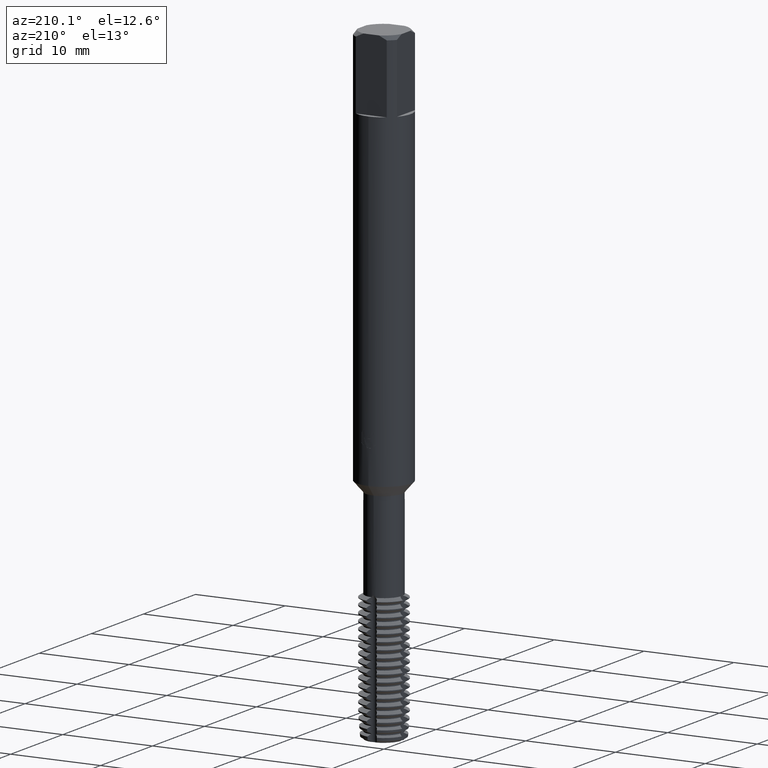
[diagram: clean part render]
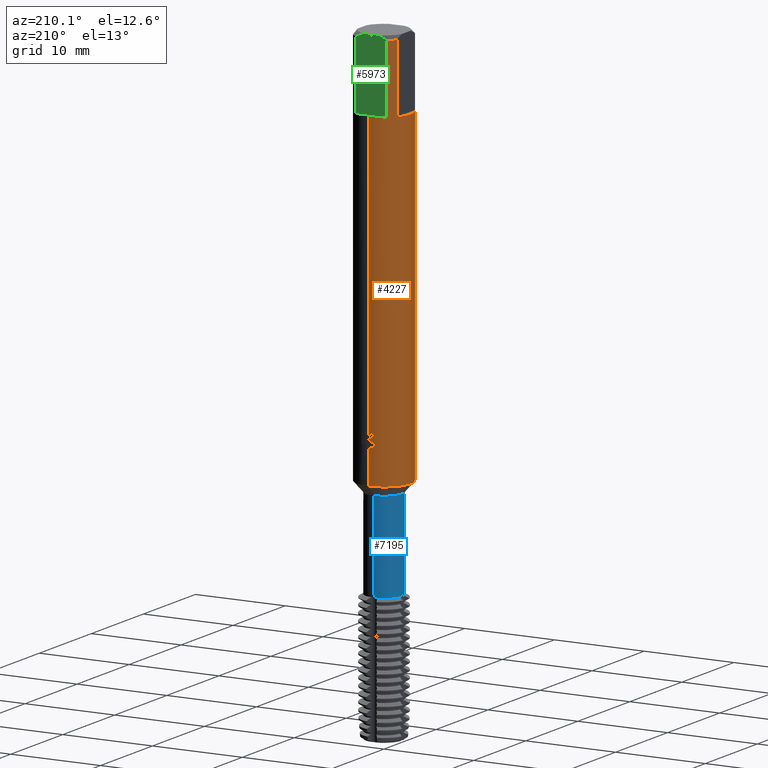
[diagram: same view with three faces highlighted in distinct colors, each labeled with its STEP entity id]
A machine part, auxiliary view with three faces highlighted in distinct colors.
Their STEP definitions:

[orange] entity #4227 — the highlighted cylindrical surface (edge-blend (fillet) strip) has radius 3 mm, axis along (-0, -0, 1).
#3021=EDGE_CURVE('',#7865,#3215,#8908,.T.);
#3037=VERTEX_POINT('',#8924);
#3215=VERTEX_POINT('',#9124);
#3343=VERTEX_POINT('',#9261);
#3379=VERTEX_POINT('',#9304);
#3549=EDGE_CURVE('',#7239,#6005,#9485,.T.);
#3793=EDGE_CURVE('',#8405,#8109,#9755,.T.);
#4227=ADVANCED_FACE('',(#10231),#10232,.T.);
#4277=EDGE_CURVE('',#4585,#7231,#10288,.T.);
#4463=EDGE_CURVE('',#3037,#5917,#10490,.T.);
#4585=VERTEX_POINT('',#10623);
#4595=EDGE_CURVE('',#4585,#5559,#10633,.T.);
#5157=EDGE_CURVE('',#7719,#3343,#11240,.T.);
#5269=VERTEX_POINT('',#11363);
#5419=EDGE_CURVE('',#5269,#7865,#11527,.T.);
#5559=VERTEX_POINT('',#11680);
#5567=EDGE_CURVE('',#3343,#5269,#11688,.T.);
#5721=VERTEX_POINT('',#11852);
#5739=EDGE_CURVE('',#6043,#5721,#11871,.T.);
#5917=VERTEX_POINT('',#12068);
#5947=EDGE_CURVE('',#7231,#7719,#12102,.T.);
#6005=VERTEX_POINT('',#12164);
#6043=VERTEX_POINT('',#12207);
#6737=EDGE_CURVE('',#8109,#7239,#12964,.T.);
#6827=EDGE_CURVE('',#3379,#8405,#13061,.T.);
#7081=VERTEX_POINT('',#13331);
#7231=VERTEX_POINT('',#13496);
#7239=VERTEX_POINT('',#13504);
#7267=VERTEX_POINT('',#13534);
#7459=EDGE_CURVE('',#6005,#7267,#13741,.T.);
#7719=VERTEX_POINT('',#14017);
#7765=VERTEX_POINT('',#14067);
#7835=EDGE_CURVE('',#5917,#7765,#14143,.T.);
#7865=VERTEX_POINT('',#14174);
#7925=EDGE_CURVE('',#7267,#3037,#14239,.T.);
#8091=EDGE_CURVE('',#7081,#5559,#14415,.T.);
#8099=EDGE_CURVE('',#3215,#6043,#14424,.T.);
#8109=VERTEX_POINT('',#14434);
#8405=VERTEX_POINT('',#14759);
#8459=EDGE_CURVE('',#7765,#7081,#14817,.T.);
#8763=EDGE_CURVE('',#5721,#3379,#15138,.T.);
#8908=CIRCLE('',#15357,3.0);
#8924=CARTESIAN_POINT('',(3.38846304659749E-016,3.0,-39.8375480931129));
#9124=CARTESIAN_POINT('',(-2.45,1.73132896931808,-8.0));
#9261=CARTESIAN_POINT('',(-1.73132896931808,-2.45,-0.399999999999999));
#9304=CARTESIAN_POINT('',(-1.73132896931808,2.45,-8.0));
#9485=B_SPLINE_CURVE_WITH_KNOTS('',3,(#16395,#16396,#16397,#16398,#16399,#16400,#16401,#16402,#16403,#16404,#16405,#16406,#16407,#16408,#16409,#16410,#16411,#16412,#16413,#16414,#16415,#16416,#16417,#16418,#16419,#16420,#16421),.UNSPECIFIED.,.F.,.F.,(4,2,3,2,2,2,2,2,2,2,2,2,4),(-0.325491662881047,-0.162745831440524,0.0,0.162745831440523,0.325491662881047,0.48857928896217,0.651666915043293,0.814181075788761,0.97669523653423,1.13937860219068,1.30206196784712,1.46474533350356,1.62742869916001),.UNSPECIFIED.);
#9755=LINE('',#16908,#16909);
#10231=FACE_OUTER_BOUND('',#17829,.T.);
#10232=CYLINDRICAL_SURFACE('',#17830,3.0);
#10288=LINE('',#17923,#17924);
#10490=LINE('',#18330,#18331);
#10623=CARTESIAN_POINT('',(3.67381906146713E-016,-3.0,-44.5));
#10633=CIRCLE('',#18594,3.0);
#11240=LINE('',#19721,#19722);
#11363=CARTESIAN_POINT('',(-2.45,-1.73132896931808,-0.399999999999999));
#11527=LINE('',#20295,#20296);
#11680=CARTESIAN_POINT('',(0.0,3.0,-44.5));
#11688=CIRCLE('',#20551,3.0);
#11852=CARTESIAN_POINT('',(-1.73132896931808,2.45,-0.399999999999999));
#11871=CIRCLE('',#20927,3.0);
#12068=CARTESIAN_POINT('',(-1.01160398442185E-017,3.0,-39.9652346801947));
#12102=CIRCLE('',#21326,3.0);
#12164=CARTESIAN_POINT('',(-0.337400394136807,2.98096644966634,-39.1277733192182));
#12207=CARTESIAN_POINT('',(-2.45,1.73132896931808,-0.399999999999999));
#12964=B_SPLINE_CURVE_WITH_KNOTS('',3,(#22960,#22961,#22962,#22963,#22964,#22965,#22966,#22967,#22968,#22969,#22970,#22971,#22972,#22973,#22974,#22975,#22976,#22977,#22978,#22979,#22980,#22981,#22982,#22983,#22984,#22985,#22986),.UNSPECIFIED.,.F.,.F.,(4,2,3,2,2,2,2,2,2,2,2,2,4),(-0.325491662881047,-0.162745831440524,0.0,0.162745831440523,0.325491662881047,0.48857928896217,0.651666915043293,0.814181075788761,0.97669523653423,1.13937860219068,1.30206196784712,1.46474533350356,1.62742869916001),.UNSPECIFIED.);
#13061=CIRCLE('',#23137,3.0);
#13331=CARTESIAN_POINT('',(1.02911540261998E-015,2.99999999999999,-40.756115216062));
#13496=CARTESIAN_POINT('',(3.67381906146713E-016,-3.0,-8.0));
#13504=CARTESIAN_POINT('',(-0.291827366629825,2.98577239388502,-39.3234702489804));
#13534=CARTESIAN_POINT('',(-0.621044042345276,2.93501350890715,-39.1277733192182));
#13741=CIRCLE('',#24451,3.0);
#14017=CARTESIAN_POINT('',(-1.73132896931808,-2.45,-8.0));
#14067=CARTESIAN_POINT('',(-0.802231651465797,2.89074806536067,-40.3607482345277));
#14143=ELLIPSE('',#25168,3.34478529612858,3.0);
#14174=CARTESIAN_POINT('',(-2.45,-1.73132896931808,-8.0));
#14239=B_SPLINE_CURVE_WITH_KNOTS('',3,(#25335,#25336,#25337,#25338,#25339,#25340,#25341,#25342,#25343,#25344,#25345,#25346,#25347,#25348),.UNSPECIFIED.,.F.,.F.,(4,2,2,2,2,2,4),(1.87999836018882,2.14840403024698,2.41680970030514,2.6852153703633,2.95307215785743,3.22092894535156,3.49027513061082),.UNSPECIFIED.);
#14415=LINE('',#25659,#25660);
#14424=LINE('',#25671,#25672);
#14434=CARTESIAN_POINT('',(-1.12524208075106E-014,3.0,-39.5514612870646));
#14759=CARTESIAN_POINT('',(-3.67381906146713E-016,3.0,-8.0));
#14817=B_SPLINE_CURVE_WITH_KNOTS('',3,(#26434,#26435,#26436,#26437,#26438,#26439,#26440,#26441,#26442,#26443),.UNSPECIFIED.,.F.,.F.,(4,2,2,2,4),(3.33952438176389,3.71068639626914,4.08193290438485,4.45317941250055,4.82387408804259),.UNSPECIFIED.);
#15138=LINE('',#27125,#27126);
#15357=AXIS2_PLACEMENT_3D('',#27334,#27335,#27336);
#16395=CARTESIAN_POINT('',(0.399073662054696,2.9733382270193,-38.8256578074487));
#16396=CARTESIAN_POINT('',(0.437241118172757,2.96821549111729,-38.8638666363942));
#16397=CARTESIAN_POINT('',(0.470378499662075,2.96297848846858,-38.9122661621587));
#16398=CARTESIAN_POINT('',(0.514381160077739,2.95565719997762,-39.0184468503984));
#16399=CARTESIAN_POINT('',(0.525240588713139,2.95366252709552,-39.0762365970719));
#16400=CARTESIAN_POINT('',(0.525240588713139,2.95366252709552,-39.1304852075521));
#16401=CARTESIAN_POINT('',(0.525240588713139,2.95366252709552,-39.1847338180322));
#16402=CARTESIAN_POINT('',(0.514381160077739,2.95565719997762,-39.2425235647058));
#16403=CARTESIAN_POINT('',(0.470378499662075,2.96297848846858,-39.3487042529454));
#16404=CARTESIAN_POINT('',(0.437241118172758,2.96821549111729,-39.39710377871));
#16405=CARTESIAN_POINT('',(0.360826047619651,2.97847172156046,-39.4736016818081));
#16406=CARTESIAN_POINT('',(0.312384718269332,2.98416839722865,-39.5068131706837));
#16407=CARTESIAN_POINT('',(0.206102293488516,2.99338722515065,-39.5509202069633));
#16408=CARTESIAN_POINT('',(0.148251731896476,2.99682777449178,-39.5618099616648));
#16409=CARTESIAN_POINT('',(0.0397709987252813,3.00022545933147,-39.5618099616648));
#16410=CARTESIAN_POINT('',(-0.0179912012444218,3.00041652694693,-39.5509886213906));
#16411=CARTESIAN_POINT('',(-0.124225517538505,2.99789776999505,-39.5069963705132));
#16412=CARTESIAN_POINT('',(-0.172700489972417,2.99527068292401,-39.4738276588386));
#16413=CARTESIAN_POINT('',(-0.249281669772502,2.9898718432363,-39.3972995158294));
#16414=CARTESIAN_POINT('',(-0.282493736677514,2.98675204362553,-39.3488123678398));
#16415=CARTESIAN_POINT('',(-0.326558647658045,2.98225584656319,-39.2425214521099));
#16416=CARTESIAN_POINT('',(-0.337408919512348,2.9809654847102,-39.1847129961042));
#16417=CARTESIAN_POINT('',(-0.337408919512347,2.9809654847102,-39.0762574189999));
#16418=CARTESIAN_POINT('',(-0.326558647658045,2.98225584656319,-39.0184489629942));
#16419=CARTESIAN_POINT('',(-0.282493736677516,2.98675204362553,-38.9121580472644));
#16420=CARTESIAN_POINT('',(-0.2492816697725,2.9898718432363,-38.8636708992748));
#16421=CARTESIAN_POINT('',(-0.210971156732432,2.9925726676268,-38.825386918428));
#16908=CARTESIAN_POINT('',(-3.67381906146713E-016,3.0,-22.45));
#16909=VECTOR('',#28232,1.0);
#17829=EDGE_LOOP('',(#28831,#28832,#28833,#28834,#28835,#28836,#28837,#28838,#28839,#28840,#28841,#28842,#28843,#28844,#28845,#28846,#28847,#28848,#28849,#28850));
#17830=AXIS2_PLACEMENT_3D('',#28851,#28852,#28853);
#17923=CARTESIAN_POINT('',(3.67381906146713E-016,-3.0,-22.45));
#17924=VECTOR('',#28917,1.0);
#18330=CARTESIAN_POINT('',(-3.67381906146713E-016,3.0,-22.45));
#18331=VECTOR('',#29109,1.0);
#18594=AXIS2_PLACEMENT_3D('',#29239,#29240,#29241);
#19721=CARTESIAN_POINT('',(-1.73132896931808,-2.45,-4.2));
#19722=VECTOR('',#29831,1.0);
#20295=CARTESIAN_POINT('',(-2.45,-1.73132896931808,-4.2));
#20296=VECTOR('',#30288,1.0);
#20551=AXIS2_PLACEMENT_3D('',#30429,#30430,#30431);
#20927=AXIS2_PLACEMENT_3D('',#30587,#30588,#30589);
#21326=AXIS2_PLACEMENT_3D('',#30993,#30994,#30995);
#22960=CARTESIAN_POINT('',(0.399073662054696,2.9733382270193,-38.8256578074487));
#22961=CARTESIAN_POINT('',(0.437241118172757,2.96821549111729,-38.8638666363942));
#22962=CARTESIAN_POINT('',(0.470378499662075,2.96297848846858,-38.9122661621587));
#22963=CARTESIAN_POINT('',(0.514381160077739,2.95565719997762,-39.0184468503984));
#22964=CARTESIAN_POINT('',(0.525240588713139,2.95366252709552,-39.0762365970719));
#22965=CARTESIAN_POINT('',(0.525240588713139,2.95366252709552,-39.1304852075521));
#22966=CARTESIAN_POINT('',(0.525240588713139,2.95366252709552,-39.1847338180322));
#22967=CARTESIAN_POINT('',(0.514381160077739,2.95565719997762,-39.2425235647058));
#22968=CARTESIAN_POINT('',(0.470378499662075,2.96297848846858,-39.3487042529454));
#22969=CARTESIAN_POINT('',(0.437241118172758,2.96821549111729,-39.39710377871));
#22970=CARTESIAN_POINT('',(0.360826047619651,2.97847172156046,-39.4736016818081));
#22971=CARTESIAN_POINT('',(0.312384718269332,2.98416839722865,-39.5068131706837));
#22972=CARTESIAN_POINT('',(0.206102293488516,2.99338722515065,-39.5509202069633));
#22973=CARTESIAN_POINT('',(0.148251731896476,2.99682777449178,-39.5618099616648));
#22974=CARTESIAN_POINT('',(0.0397709987252813,3.00022545933147,-39.5618099616648));
#22975=CARTESIAN_POINT('',(-0.0179912012444218,3.00041652694693,-39.5509886213906));
#22976=CARTESIAN_POINT('',(-0.124225517538505,2.99789776999505,-39.5069963705132));
#22977=CARTESIAN_POINT('',(-0.172700489972417,2.99527068292401,-39.4738276588386));
#22978=CARTESIAN_POINT('',(-0.249281669772502,2.9898718432363,-39.3972995158294));
#22979=CARTESIAN_POINT('',(-0.282493736677514,2.98675204362553,-39.3488123678398));
#22980=CARTESIAN_POINT('',(-0.326558647658045,2.98225584656319,-39.2425214521099));
#22981=CARTESIAN_POINT('',(-0.337408919512348,2.9809654847102,-39.1847129961042));
#22982=CARTESIAN_POINT('',(-0.337408919512347,2.9809654847102,-39.0762574189999));
#22983=CARTESIAN_POINT('',(-0.326558647658045,2.98225584656319,-39.0184489629942));
#22984=CARTESIAN_POINT('',(-0.282493736677516,2.98675204362553,-38.9121580472644));
#22985=CARTESIAN_POINT('',(-0.2492816697725,2.9898718432363,-38.8636708992748));
#22986=CARTESIAN_POINT('',(-0.210971156732432,2.9925726676268,-38.825386918428));
#23137=AXIS2_PLACEMENT_3D('',#31961,#31962,#31963);
#24451=AXIS2_PLACEMENT_3D('',#32743,#32744,#32745);
#25168=AXIS2_PLACEMENT_3D('',#33082,#33083,#33084);
#25335=CARTESIAN_POINT('',(-0.566815594805735,2.94596674819744,-38.8611150957041));
#25336=CARTESIAN_POINT('',(-0.603122291768812,2.93898119928694,-38.9485702631868));
#25337=CARTESIAN_POINT('',(-0.621065410741118,2.93500898730838,-39.0438125597536));
#25338=CARTESIAN_POINT('',(-0.621065410741118,2.93500898730838,-39.2227496731257));
#25339=CARTESIAN_POINT('',(-0.603122291768812,2.93898119928694,-39.3179919696925));
#25340=CARTESIAN_POINT('',(-0.530508897842667,2.95295229710796,-39.492902304658));
#25341=CARTESIAN_POINT('',(-0.475852290631327,2.96270316106731,-39.5725957389974));
#25342=CARTESIAN_POINT('',(-0.349984167638816,2.98019126514534,-39.698311405771));
#25343=CARTESIAN_POINT('',(-0.270336314519269,2.98907692835774,-39.7528432148754));
#25344=CARTESIAN_POINT('',(-0.0955895793377411,2.99975419634472,-39.8252548978209));
#25345=CARTESIAN_POINT('',(-0.00047184449299921,3.00132832175784,-39.843121178052));
#25346=CARTESIAN_POINT('',(0.178517394741791,2.99602943216305,-39.843121178052));
#25347=CARTESIAN_POINT('',(0.273865411703844,2.98877153009163,-39.8250766213428));
#25348=CARTESIAN_POINT('',(0.361301135447278,2.97816411393404,-39.7887216005985));
#25659=CARTESIAN_POINT('',(-3.67381906146713E-016,3.0,-22.45));
#25660=VECTOR('',#33317,1.0);
#25671=CARTESIAN_POINT('',(-2.45,1.73132896931808,-4.2));
#25672=VECTOR('',#33331,1.0);
#26434=CARTESIAN_POINT('',(-0.919321134391312,2.85566956279284,-40.1542514643836));
#26435=CARTESIAN_POINT('',(-0.869340333826626,2.87175979045446,-40.2744526818478));
#26436=CARTESIAN_POINT('',(-0.7943367658771,2.89428729416518,-40.383680348735));
#26437=CARTESIAN_POINT('',(-0.62190649826245,2.93617195165647,-40.5561756687858));
#26438=CARTESIAN_POINT('',(-0.512637169305662,2.95836427575571,-40.6312653794614));
#26439=CARTESIAN_POINT('',(-0.272101743389447,2.99009643596645,-40.7313340938058));
#26440=CARTESIAN_POINT('',(-0.140764146727553,2.99924977776393,-40.7562634001052));
#26441=CARTESIAN_POINT('',(0.106545602280532,3.0006526485303,-40.7562634001052));
#26442=CARTESIAN_POINT('',(0.237797441372153,2.9930118737714,-40.7314004779081));
#26443=CARTESIAN_POINT('',(0.358042092904169,2.97855768111158,-40.6814214764374));
#27125=CARTESIAN_POINT('',(-1.73132896931808,2.45,-4.2));
#27126=VECTOR('',#33962,1.0);
#27334=CARTESIAN_POINT('',(0.0,0.0,-8.0));
#27335=DIRECTION('',(0.0,0.0,-1.0));
#27336=DIRECTION('',(0.0,1.0,0.0));
#28232=DIRECTION('',(0.0,0.0,-1.0));
#28831=ORIENTED_EDGE('',*,*,#3793,.T.);
#28832=ORIENTED_EDGE('',*,*,#6737,.T.);
#28833=ORIENTED_EDGE('',*,*,#3549,.T.);
#28834=ORIENTED_EDGE('',*,*,#7459,.T.);
#28835=ORIENTED_EDGE('',*,*,#7925,.T.);
#28836=ORIENTED_EDGE('',*,*,#4463,.T.);
#28837=ORIENTED_EDGE('',*,*,#7835,.T.);
#28838=ORIENTED_EDGE('',*,*,#8459,.T.);
#28839=ORIENTED_EDGE('',*,*,#8091,.T.);
#28840=ORIENTED_EDGE('',*,*,#4595,.F.);
#28841=ORIENTED_EDGE('',*,*,#4277,.T.);
#28842=ORIENTED_EDGE('',*,*,#5947,.T.);
#28843=ORIENTED_EDGE('',*,*,#5157,.T.);
#28844=ORIENTED_EDGE('',*,*,#5567,.T.);
#28845=ORIENTED_EDGE('',*,*,#5419,.T.);
#28846=ORIENTED_EDGE('',*,*,#3021,.T.);
#28847=ORIENTED_EDGE('',*,*,#8099,.T.);
#28848=ORIENTED_EDGE('',*,*,#5739,.T.);
#28849=ORIENTED_EDGE('',*,*,#8763,.T.);
#28850=ORIENTED_EDGE('',*,*,#6827,.T.);
#28851=CARTESIAN_POINT('',(0.0,0.0,-22.45));
#28852=DIRECTION('',(-0.0,-0.0,1.0));
#28853=DIRECTION('',(0.0,1.0,0.0));
#28917=DIRECTION('',(-0.0,-0.0,1.0));
#29109=DIRECTION('',(0.0,0.0,-1.0));
#29239=CARTESIAN_POINT('',(0.0,0.0,-44.5));
#29240=DIRECTION('',(0.0,0.0,-1.0));
#29241=DIRECTION('',(0.0,1.0,0.0));
#29831=DIRECTION('',(-0.0,-0.0,1.0));
#30288=DIRECTION('',(0.0,0.0,-1.0));
#30429=CARTESIAN_POINT('',(0.0,0.0,-0.399999999999999));
#30430=DIRECTION('',(0.0,0.0,-1.0));
#30431=DIRECTION('',(0.0,1.0,0.0));
#30587=CARTESIAN_POINT('',(0.0,0.0,-0.399999999999999));
#30588=DIRECTION('',(0.0,0.0,-1.0));
#30589=DIRECTION('',(0.0,1.0,0.0));
#30993=CARTESIAN_POINT('',(0.0,0.0,-8.0));
#30994=DIRECTION('',(0.0,0.0,-1.0));
#30995=DIRECTION('',(0.0,1.0,0.0));
#31961=CARTESIAN_POINT('',(0.0,0.0,-8.0));
#31962=DIRECTION('',(0.0,0.0,-1.0));
#31963=DIRECTION('',(0.0,1.0,0.0));
#32743=CARTESIAN_POINT('',(0.0,0.0,-39.1277733192182));
#32744=DIRECTION('',(0.0,-0.0,1.0));
#32745=DIRECTION('',(0.0,1.0,0.0));
#33082=CARTESIAN_POINT('',(0.0,0.0,-39.9652346801947));
#33083=DIRECTION('',(-0.442195774284071,0.0,0.896918556617774));
#33084=DIRECTION('',(0.896918556617774,-0.0,0.442195774284071));
#33317=DIRECTION('',(0.0,0.0,-1.0));
#33331=DIRECTION('',(-0.0,-0.0,1.0));
#33962=DIRECTION('',(0.0,0.0,-1.0));

[blue] entity #7195 — the highlighted cylindrical surface (edge-blend (fillet) strip) has radius 2 mm, axis along (-0, -0, 1).
#3529=VERTEX_POINT('',#9462);
#3903=EDGE_CURVE('',#8733,#5441,#9874,.T.);
#4121=EDGE_CURVE('',#5689,#6563,#10110,.T.);
#4207=EDGE_CURVE('',#8733,#6563,#10208,.T.);
#4937=VERTEX_POINT('',#11008);
#5441=VERTEX_POINT('',#11551);
#5527=EDGE_CURVE('',#3529,#7395,#11645,.T.);
#5689=VERTEX_POINT('',#11818);
#6563=VERTEX_POINT('',#12775);
#6991=VERTEX_POINT('',#13236);
#7195=ADVANCED_FACE('',(#13454),#13455,.T.);
#7283=VERTEX_POINT('',#13551);
#7395=VERTEX_POINT('',#13671);
#7863=EDGE_CURVE('',#7283,#6991,#14172,.T.);
#7989=EDGE_CURVE('',#6991,#5689,#14305,.T.);
#8293=EDGE_CURVE('',#3529,#4937,#14636,.T.);
#8663=EDGE_CURVE('',#4937,#7283,#15031,.T.);
#8719=EDGE_CURVE('',#5441,#7395,#15090,.T.);
#8733=VERTEX_POINT('',#15105);
#9462=CARTESIAN_POINT('',(-0.217041150912711,-1.98818840626599,-55.7113248654052));
#9874=B_SPLINE_CURVE_WITH_KNOTS('',3,(#17150,#17151,#17152,#17153,#17154,#17155,#17156,#17157,#17158,#17159,#17160,#17161,#17162,#17163,#17164,#17165,#17166,#17167),.UNSPECIFIED.,.F.,.F.,(4,2,2,2,2,2,2,2,4),(0.0,0.184916828543583,0.31388117059987,0.392657508020592,0.455740030961566,0.527677729167261,0.648953381606745,0.80112742390367,0.947968422808504),.UNSPECIFIED.);
#10110=B_SPLINE_CURVE_WITH_KNOTS('',3,(#17598,#17599,#17600,#17601,#17602,#17603,#17604,#17605,#17606,#17607,#17608,#17609,#17610,#17611,#17612,#17613,#17614,#17615),.UNSPECIFIED.,.F.,.F.,(4,2,2,2,2,2,2,2,4),(0.0,0.184916828543801,0.313881170598388,0.392657508017033,0.45574003095613,0.527677729159719,0.648953381596259,0.801127423889196,0.947968422790102),.UNSPECIFIED.);
#10208=CIRCLE('',#17792,2.0);
#11008=CARTESIAN_POINT('',(-4.75323867020173E-013,-2.0,-55.4913272165206));
#11551=CARTESIAN_POINT('',(-2.0,4.75487348336051E-013,-55.4913272165206));
#11645=CIRCLE('',#20488,2.0);
#11818=CARTESIAN_POINT('',(4.75306954330964E-013,2.0,-55.4913272165206));
#12775=CARTESIAN_POINT('',(-0.21704115091265,1.98818840626598,-55.7113248654052));
#13236=CARTESIAN_POINT('',(0.0,2.0,-45.63971143));
#13454=FACE_OUTER_BOUND('',#23893,.T.);
#13455=CYLINDRICAL_SURFACE('',#23894,2.0);
#13551=CARTESIAN_POINT('',(2.44921270764475E-016,-2.0,-45.63971143));
#13671=CARTESIAN_POINT('',(-1.988188406266,-0.217041150912782,-55.7113248654052));
#14172=CIRCLE('',#25230,2.0);
#14305=LINE('',#25473,#25474);
#14636=B_SPLINE_CURVE_WITH_KNOTS('',3,(#26069,#26070,#26071,#26072,#26073,#26074,#26075,#26076,#26077,#26078,#26079,#26080,#26081,#26082,#26083,#26084,#26085,#26086),.UNSPECIFIED.,.F.,.F.,(4,2,2,2,2,2,2,2,4),(0.0,0.184916828542244,0.313881170602458,0.39265750802902,0.455740030974451,0.527677729185293,0.64895338163406,0.801127423942244,0.94796842285793),.UNSPECIFIED.);
#15031=LINE('',#26864,#26865);
#15090=B_SPLINE_CURVE_WITH_KNOTS('',3,(#27008,#27009,#27010,#27011,#27012,#27013,#27014,#27015,#27016,#27017,#27018,#27019,#27020,#27021,#27022,#27023,#27024,#27025),.UNSPECIFIED.,.F.,.F.,(4,2,2,2,2,2,2,2,4),(0.0,0.184916828543583,0.31388117059987,0.392657508020592,0.455740030961566,0.527677729167261,0.648953381606745,0.80112742390367,0.947968422808504),.UNSPECIFIED.);
#15105=CARTESIAN_POINT('',(-1.98818840626599,0.217041150912705,-55.7113248654052));
#17150=CARTESIAN_POINT('',(-1.98818840626599,0.217041150912706,-55.7113248654052));
#17151=CARTESIAN_POINT('',(-1.99040136188015,0.196769544919278,-55.6531567977624));
#17152=CARTESIAN_POINT('',(-1.99295085165761,0.170546836301947,-55.6045018817614));
#17153=CARTESIAN_POINT('',(-1.99659177912028,0.118651361228123,-55.5421955936678));
#17154=CARTESIAN_POINT('',(-1.99785792265675,0.0956162957739395,-55.5228740456769));
#17155=CARTESIAN_POINT('',(-1.99924476439916,0.0568886544430303,-55.5021928749242));
#17156=CARTESIAN_POINT('',(-1.99964121236422,0.0412732748931024,-55.4964792105463));
#17157=CARTESIAN_POINT('',(-2.0000084034947,0.0117701526835361,-55.4912009991279));
#17158=CARTESIAN_POINT('',(-2.00004337429773,-0.00147802351660033,-55.4907050412865));
#17159=CARTESIAN_POINT('',(-1.9998343994518,-0.0298469969715436,-55.4936994585097));
#17160=CARTESIAN_POINT('',(-1.99955458023801,-0.0444601085653778,-55.497704079874));
#17161=CARTESIAN_POINT('',(-1.99845829977472,-0.0819710553093562,-55.5138213421926));
#17162=CARTESIAN_POINT('',(-1.99743195346266,-0.102958844637793,-55.5292812837702));
#17163=CARTESIAN_POINT('',(-1.99493074752295,-0.144148024721047,-55.5699767275644));
#17164=CARTESIAN_POINT('',(-1.99338525362248,-0.163293444133315,-55.5971693201742));
#17165=CARTESIAN_POINT('',(-1.99060688305388,-0.194207550773381,-55.6526423722295));
#17166=CARTESIAN_POINT('',(-1.98931063957454,-0.206761020882969,-55.6818266944591));
#17167=CARTESIAN_POINT('',(-1.98818840626599,-0.217041150912705,-55.7113248654052));
#17598=CARTESIAN_POINT('',(0.217041150912698,1.98818840626599,-55.7113248654052));
#17599=CARTESIAN_POINT('',(0.196769544919246,1.99040136188016,-55.6531567977623));
#17600=CARTESIAN_POINT('',(0.170546836301902,1.99295085165761,-55.6045018817614));
#17601=CARTESIAN_POINT('',(0.118651361228449,1.99659177912026,-55.5421955936682));
#17602=CARTESIAN_POINT('',(0.0956162957742932,1.99785792265674,-55.5228740456771));
#17603=CARTESIAN_POINT('',(0.0568886544429987,1.99924476439916,-55.5021928749242));
#17604=CARTESIAN_POINT('',(0.0412732748930852,1.99964121236422,-55.4964792105463));
#17605=CARTESIAN_POINT('',(0.0117701526835883,2.0000084034947,-55.4912009991279));
#17606=CARTESIAN_POINT('',(-0.00147802351657544,2.00004337429773,-55.4907050412865));
#17607=CARTESIAN_POINT('',(-0.0298469969715843,1.9998343994518,-55.4936994585098));
#17608=CARTESIAN_POINT('',(-0.0444601085654584,1.999554580238,-55.497704079874));
#17609=CARTESIAN_POINT('',(-0.0819710553093431,1.99845829977472,-55.5138213421926));
#17610=CARTESIAN_POINT('',(-0.102958844637764,1.99743195346266,-55.5292812837702));
#17611=CARTESIAN_POINT('',(-0.144148024721045,1.99493074752295,-55.5699767275644));
#17612=CARTESIAN_POINT('',(-0.163293444133309,1.99338525362248,-55.5971693201742));
#17613=CARTESIAN_POINT('',(-0.194207550773385,1.99060688305388,-55.6526423722295));
#17614=CARTESIAN_POINT('',(-0.206761020882972,1.98931063957454,-55.6818266944591));
#17615=CARTESIAN_POINT('',(-0.217041150912698,1.98818840626599,-55.7113248654052));
#17792=AXIS2_PLACEMENT_3D('',#28799,#28800,#28801);
#20488=AXIS2_PLACEMENT_3D('',#30395,#30396,#30397);
#23893=EDGE_LOOP('',(#32305,#32306,#32307,#32308,#32309,#32310,#32311,#32312,#32313));
#23894=AXIS2_PLACEMENT_3D('',#32314,#32315,#32316);
#25230=AXIS2_PLACEMENT_3D('',#33103,#33104,#33105);
#25473=CARTESIAN_POINT('',(-2.44921270764475E-016,2.0,-50.6755181477026));
#25474=VECTOR('',#33220,1.0);
#26069=CARTESIAN_POINT('',(-0.217041150912712,-1.98818840626599,-55.7113248654052));
#26070=CARTESIAN_POINT('',(-0.196769544919432,-1.99040136188014,-55.6531567977628));
#26071=CARTESIAN_POINT('',(-0.17054683630218,-1.99295085165759,-55.6045018817617));
#26072=CARTESIAN_POINT('',(-0.118651361227165,-1.99659177912035,-55.5421955936667));
#26073=CARTESIAN_POINT('',(-0.0956162957729019,-1.99785792265679,-55.5228740456764));
#26074=CARTESIAN_POINT('',(-0.0568886544430276,-1.99924476439916,-55.5021928749242));
#26075=CARTESIAN_POINT('',(-0.0412732748931019,-1.99964121236422,-55.4964792105463));
#26076=CARTESIAN_POINT('',(-0.0117701526835849,-2.0000084034947,-55.4912009991279));
#26077=CARTESIAN_POINT('',(0.0014780235165756,-2.00004337429773,-55.4907050412865));
#26078=CARTESIAN_POINT('',(0.029846996971584,-1.9998343994518,-55.4936994585097));
#26079=CARTESIAN_POINT('',(0.044460108565461,-1.999554580238,-55.497704079874));
#26080=CARTESIAN_POINT('',(0.0819710553093343,-1.99845829977472,-55.5138213421926));
#26081=CARTESIAN_POINT('',(0.102958844637748,-1.99743195346266,-55.5292812837701));
#26082=CARTESIAN_POINT('',(0.144148024721048,-1.99493074752295,-55.5699767275644));
#26083=CARTESIAN_POINT('',(0.163293444133316,-1.99338525362248,-55.5971693201742));
#26084=CARTESIAN_POINT('',(0.194207550773386,-1.99060688305388,-55.6526423722295));
#26085=CARTESIAN_POINT('',(0.206761020882975,-1.98931063957454,-55.6818266944591));
#26086=CARTESIAN_POINT('',(0.217041150912714,-1.98818840626599,-55.7113248654052));
#26864=CARTESIAN_POINT('',(2.44921270764475E-016,-2.0,-50.6755181477026));
#26865=VECTOR('',#33876,1.0);
#27008=CARTESIAN_POINT('',(-1.98818840626599,0.217041150912706,-55.7113248654052));
#27009=CARTESIAN_POINT('',(-1.99040136188015,0.196769544919278,-55.6531567977624));
#27010=CARTESIAN_POINT('',(-1.99295085165761,0.170546836301947,-55.6045018817614));
#27011=CARTESIAN_POINT('',(-1.99659177912028,0.118651361228123,-55.5421955936678));
#27012=CARTESIAN_POINT('',(-1.99785792265675,0.0956162957739395,-55.5228740456769));
#27013=CARTESIAN_POINT('',(-1.99924476439916,0.0568886544430303,-55.5021928749242));
#27014=CARTESIAN_POINT('',(-1.99964121236422,0.0412732748931024,-55.4964792105463));
#27015=CARTESIAN_POINT('',(-2.0000084034947,0.0117701526835361,-55.4912009991279));
#27016=CARTESIAN_POINT('',(-2.00004337429773,-0.00147802351660033,-55.4907050412865));
#27017=CARTESIAN_POINT('',(-1.9998343994518,-0.0298469969715436,-55.4936994585097));
#27018=CARTESIAN_POINT('',(-1.99955458023801,-0.0444601085653778,-55.497704079874));
#27019=CARTESIAN_POINT('',(-1.99845829977472,-0.0819710553093562,-55.5138213421926));
#27020=CARTESIAN_POINT('',(-1.99743195346266,-0.102958844637793,-55.5292812837702));
#27021=CARTESIAN_POINT('',(-1.99493074752295,-0.144148024721047,-55.5699767275644));
#27022=CARTESIAN_POINT('',(-1.99338525362248,-0.163293444133315,-55.5971693201742));
#27023=CARTESIAN_POINT('',(-1.99060688305388,-0.194207550773381,-55.6526423722295));
#27024=CARTESIAN_POINT('',(-1.98931063957454,-0.206761020882969,-55.6818266944591));
#27025=CARTESIAN_POINT('',(-1.98818840626599,-0.217041150912705,-55.7113248654052));
#28799=CARTESIAN_POINT('',(0.0,0.0,-55.7113248654052));
#28800=DIRECTION('',(0.0,0.0,-1.0));
#28801=DIRECTION('',(0.0,1.0,0.0));
#30395=CARTESIAN_POINT('',(0.0,0.0,-55.7113248654052));
#30396=DIRECTION('',(0.0,0.0,-1.0));
#30397=DIRECTION('',(0.0,1.0,0.0));
#32305=ORIENTED_EDGE('',*,*,#7989,.T.);
#32306=ORIENTED_EDGE('',*,*,#4121,.T.);
#32307=ORIENTED_EDGE('',*,*,#4207,.F.);
#32308=ORIENTED_EDGE('',*,*,#3903,.T.);
#32309=ORIENTED_EDGE('',*,*,#8719,.T.);
#32310=ORIENTED_EDGE('',*,*,#5527,.F.);
#32311=ORIENTED_EDGE('',*,*,#8293,.T.);
#32312=ORIENTED_EDGE('',*,*,#8663,.T.);
#32313=ORIENTED_EDGE('',*,*,#7863,.T.);
#32314=CARTESIAN_POINT('',(0.0,0.0,-50.6755181477026));
#32315=DIRECTION('',(-0.0,-0.0,1.0));
#32316=DIRECTION('',(0.0,1.0,0.0));
#33103=CARTESIAN_POINT('',(0.0,0.0,-45.63971143));
#33104=DIRECTION('',(0.0,0.0,-1.0));
#33105=DIRECTION('',(0.0,1.0,0.0));
#33220=DIRECTION('',(0.0,0.0,-1.0));
#33876=DIRECTION('',(-0.0,-0.0,1.0));

[green] entity #5973 — the highlighted planar face has unit normal (0, 1, 0).
#2969=VERTEX_POINT('',#8853);
#3051=EDGE_CURVE('',#3379,#2969,#8938,.T.);
#3359=EDGE_CURVE('',#8233,#5721,#9279,.T.);
#3379=VERTEX_POINT('',#9304);
#3591=EDGE_CURVE('',#5403,#8233,#9530,.T.);
#5403=VERTEX_POINT('',#11510);
#5449=VERTEX_POINT('',#11559);
#5721=VERTEX_POINT('',#11852);
#5765=EDGE_CURVE('',#2969,#5449,#11899,.T.);
#5973=ADVANCED_FACE('',(#12128),#12129,.T.);
#8233=VERTEX_POINT('',#14570);
#8691=EDGE_CURVE('',#5449,#5403,#15060,.T.);
#8763=EDGE_CURVE('',#5721,#3379,#15138,.T.);
#8853=CARTESIAN_POINT('',(1.73132896931808,2.45,-8.0));
#8938=LINE('',#15402,#15403);
#9279=(B_SPLINE_CURVE(2,(#16006,#16007,#16008),.UNSPECIFIED.,.F.,.F.)B_SPLINE_CURVE_WITH_KNOTS((3,3),(0.0,0.950549192151453),.UNSPECIFIED.)RATIONAL_B_SPLINE_CURVE((1.0,1.01203284912645,1.0))BOUNDED_CURVE()REPRESENTATION_ITEM('')GEOMETRIC_REPRESENTATION_ITEM()CURVE());
#9304=CARTESIAN_POINT('',(-1.73132896931808,2.45,-8.0));
#9530=LINE('',#16502,#16503);
#11510=CARTESIAN_POINT('',(0.87034475927646,2.45,0.0));
#11559=CARTESIAN_POINT('',(1.73132896931808,2.45,-0.399999999999999));
#11852=CARTESIAN_POINT('',(-1.73132896931808,2.45,-0.399999999999999));
#11899=LINE('',#20972,#20973);
#12128=FACE_OUTER_BOUND('',#21366,.T.);
#12129=PLANE('',#21367);
#14570=CARTESIAN_POINT('',(-0.87034475927646,2.45,0.0));
#15060=(B_SPLINE_CURVE(2,(#26934,#26935,#26936),.UNSPECIFIED.,.F.,.F.)B_SPLINE_CURVE_WITH_KNOTS((3,3),(0.0,0.950549192151453),.UNSPECIFIED.)RATIONAL_B_SPLINE_CURVE((1.0,1.01203284912645,1.0))BOUNDED_CURVE()REPRESENTATION_ITEM('')GEOMETRIC_REPRESENTATION_ITEM()CURVE());
#15138=LINE('',#27125,#27126);
#15402=CARTESIAN_POINT('',(0.0,2.45,-8.0));
#15403=VECTOR('',#27354,1.0);
#16006=CARTESIAN_POINT('',(-0.870344759276449,2.45,1.11022302462516E-016));
#16007=CARTESIAN_POINT('',(-1.27008742822434,2.45,-0.133813052683839));
#16008=CARTESIAN_POINT('',(-1.73132896931807,2.45,-0.399999999999998));
#16502=CARTESIAN_POINT('',(0.0,2.45,0.0));
#16503=VECTOR('',#27952,1.0);
#20972=CARTESIAN_POINT('',(1.73132896931808,2.45,-4.2));
#20973=VECTOR('',#30628,1.0);
#21366=EDGE_LOOP('',(#31009,#31010,#31011,#31012,#31013,#31014));
#21367=AXIS2_PLACEMENT_3D('',#31015,#31016,#31017);
#26934=CARTESIAN_POINT('',(1.73132896931807,2.45,-0.399999999999998));
#26935=CARTESIAN_POINT('',(1.27008742822434,2.45,-0.133813052683839));
#26936=CARTESIAN_POINT('',(0.870344759276449,2.45,1.11022302462516E-016));
#27125=CARTESIAN_POINT('',(-1.73132896931808,2.45,-4.2));
#27126=VECTOR('',#33962,1.0);
#27354=DIRECTION('',(1.0,0.0,0.0));
#27952=DIRECTION('',(-1.0,0.0,0.0));
#30628=DIRECTION('',(-0.0,-0.0,1.0));
#31009=ORIENTED_EDGE('',*,*,#8763,.F.);
#31010=ORIENTED_EDGE('',*,*,#3359,.F.);
#31011=ORIENTED_EDGE('',*,*,#3591,.F.);
#31012=ORIENTED_EDGE('',*,*,#8691,.F.);
#31013=ORIENTED_EDGE('',*,*,#5765,.F.);
#31014=ORIENTED_EDGE('',*,*,#3051,.F.);
#31015=CARTESIAN_POINT('',(0.0,2.45,-3.5));
#31016=DIRECTION('',(0.0,1.0,0.0));
#31017=DIRECTION('',(0.0,0.0,-1.0));
#33962=DIRECTION('',(0.0,0.0,-1.0));